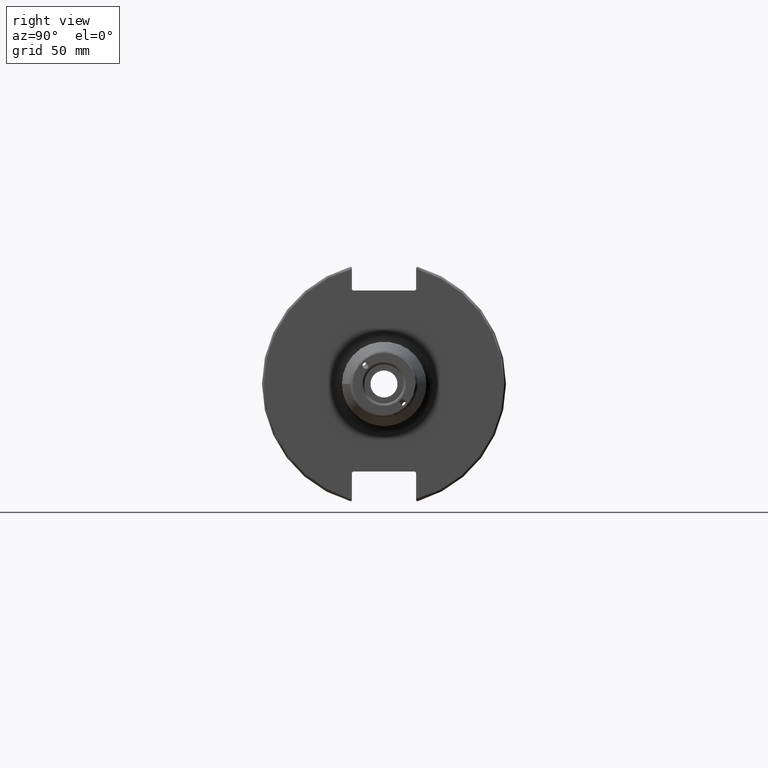
[diagram: clean part render]
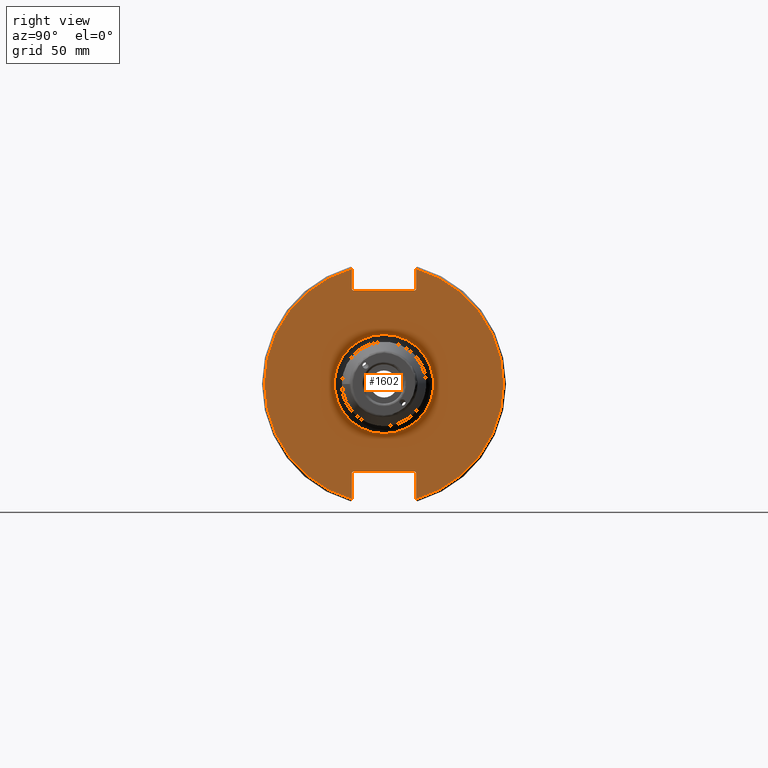
[diagram: same view with one face highlighted and labeled with its STEP entity id]
A machine part, right view. The second image highlights one B-rep face of the part: STEP entity #1602.
In plain terms, the highlighted planar face has unit normal (1, 0, 0).
Its self-contained STEP definition (entity closure, byte-faithful):
#36=PLANE('',#1743);
#87=FACE_BOUND('',#293,.T.);
#191=FACE_OUTER_BOUND('',#292,.T.);
#292=EDGE_LOOP('',(#1148,#1149,#1150,#1151,#1152,#1153,#1154,#1155,#1156,
#1157,#1158,#1159));
#293=EDGE_LOOP('',(#1160));
#394=LINE('',#2509,#494);
#395=LINE('',#2511,#495);
#396=LINE('',#2513,#496);
#397=LINE('',#2515,#497);
#398=LINE('',#2517,#498);
#399=LINE('',#2521,#499);
#400=LINE('',#2523,#500);
#401=LINE('',#2525,#501);
#402=LINE('',#2527,#502);
#403=LINE('',#2528,#503);
#494=VECTOR('',#1984,10.);
#495=VECTOR('',#1985,10.);
#496=VECTOR('',#1986,10.);
#497=VECTOR('',#1987,10.);
#498=VECTOR('',#1988,10.);
#499=VECTOR('',#1991,10.);
#500=VECTOR('',#1992,10.);
#501=VECTOR('',#1993,10.);
#502=VECTOR('',#1994,10.);
#503=VECTOR('',#1995,10.);
#601=CIRCLE('',#1739,20.);
#604=CIRCLE('',#1744,48.2125);
#605=CIRCLE('',#1745,48.2125);
#692=VERTEX_POINT('',#2496);
#694=VERTEX_POINT('',#2505);
#695=VERTEX_POINT('',#2506);
#696=VERTEX_POINT('',#2508);
#697=VERTEX_POINT('',#2510);
#698=VERTEX_POINT('',#2512);
#699=VERTEX_POINT('',#2514);
#700=VERTEX_POINT('',#2516);
#701=VERTEX_POINT('',#2518);
#702=VERTEX_POINT('',#2520);
#703=VERTEX_POINT('',#2522);
#704=VERTEX_POINT('',#2524);
#705=VERTEX_POINT('',#2526);
#866=EDGE_CURVE('',#692,#692,#601,.T.);
#870=EDGE_CURVE('',#694,#695,#604,.T.);
#871=EDGE_CURVE('',#694,#696,#394,.T.);
#872=EDGE_CURVE('',#697,#696,#395,.T.);
#873=EDGE_CURVE('',#697,#698,#396,.T.);
#874=EDGE_CURVE('',#699,#698,#397,.T.);
#875=EDGE_CURVE('',#699,#700,#398,.T.);
#876=EDGE_CURVE('',#701,#700,#605,.T.);
#877=EDGE_CURVE('',#701,#702,#399,.T.);
#878=EDGE_CURVE('',#703,#702,#400,.T.);
#879=EDGE_CURVE('',#703,#704,#401,.T.);
#880=EDGE_CURVE('',#705,#704,#402,.T.);
#881=EDGE_CURVE('',#705,#695,#403,.T.);
#1148=ORIENTED_EDGE('',*,*,#870,.F.);
#1149=ORIENTED_EDGE('',*,*,#871,.T.);
#1150=ORIENTED_EDGE('',*,*,#872,.F.);
#1151=ORIENTED_EDGE('',*,*,#873,.T.);
#1152=ORIENTED_EDGE('',*,*,#874,.F.);
#1153=ORIENTED_EDGE('',*,*,#875,.T.);
#1154=ORIENTED_EDGE('',*,*,#876,.F.);
#1155=ORIENTED_EDGE('',*,*,#877,.T.);
#1156=ORIENTED_EDGE('',*,*,#878,.F.);
#1157=ORIENTED_EDGE('',*,*,#879,.T.);
#1158=ORIENTED_EDGE('',*,*,#880,.F.);
#1159=ORIENTED_EDGE('',*,*,#881,.T.);
#1160=ORIENTED_EDGE('',*,*,#866,.F.);
#1602=ADVANCED_FACE('',(#191,#87),#36,.T.);
#1739=AXIS2_PLACEMENT_3D('',#2498,#1971,#1972);
#1743=AXIS2_PLACEMENT_3D('',#2504,#1980,#1981);
#1744=AXIS2_PLACEMENT_3D('',#2507,#1982,#1983);
#1745=AXIS2_PLACEMENT_3D('',#2519,#1989,#1990);
#1971=DIRECTION('center_axis',(1.,0.,0.));
#1972=DIRECTION('ref_axis',(0.,-1.,-1.22464679914735E-16));
#1980=DIRECTION('center_axis',(1.,0.,0.));
#1981=DIRECTION('ref_axis',(0.,0.,-1.));
#1982=DIRECTION('center_axis',(-1.,0.,0.));
#1983=DIRECTION('ref_axis',(0.,1.,-6.12323399573677E-17));
#1984=DIRECTION('',(0.,0.,-1.));
#1985=DIRECTION('',(0.,0.707106781186549,0.707106781186546));
#1986=DIRECTION('',(0.,-1.,0.));
#1987=DIRECTION('',(0.,0.707106781186549,-0.707106781186546));
#1988=DIRECTION('',(0.,0.,1.));
#1989=DIRECTION('center_axis',(-1.,0.,0.));
#1990=DIRECTION('ref_axis',(0.,-1.,1.60812264967664E-16));
#1991=DIRECTION('',(0.,0.,1.));
#1992=DIRECTION('',(0.,-0.707106781186549,-0.707106781186546));
#1993=DIRECTION('',(0.,1.,0.));
#1994=DIRECTION('',(0.,-0.707106781186548,0.707106781186548));
#1995=DIRECTION('',(0.,0.,-1.));
#2496=CARTESIAN_POINT('',(19.05,-2.44929359829471E-15,-20.));
#2498=CARTESIAN_POINT('Origin',(19.05,0.,0.));
#2504=CARTESIAN_POINT('Origin',(19.05,0.,0.));
#2505=CARTESIAN_POINT('',(19.05,12.95,46.4407434937254));
#2506=CARTESIAN_POINT('',(19.05,12.95,-46.4407434937254));
#2507=CARTESIAN_POINT('Origin',(19.05,0.,0.));
#2508=CARTESIAN_POINT('',(19.05,12.95,38.219));
#2509=CARTESIAN_POINT('',(19.05,12.95,18.8595));
#2510=CARTESIAN_POINT('',(19.05,12.45,37.719));
#2511=CARTESIAN_POINT('',(19.05,0.0327499999999836,25.30175));
#2512=CARTESIAN_POINT('',(19.05,-12.45,37.719));
#2513=CARTESIAN_POINT('',(19.05,0.,37.719));
#2514=CARTESIAN_POINT('',(19.05,-12.95,38.219));
#2515=CARTESIAN_POINT('',(19.05,-0.0327499999999817,25.30175));
#2516=CARTESIAN_POINT('',(19.05,-12.95,46.4407434937254));
#2517=CARTESIAN_POINT('',(19.05,-12.95,18.8595));
#2518=CARTESIAN_POINT('',(19.05,-12.95,-46.4407434937254));
#2519=CARTESIAN_POINT('Origin',(19.05,0.,0.));
#2520=CARTESIAN_POINT('',(19.05,-12.95,-35.806));
#2521=CARTESIAN_POINT('',(19.05,-12.95,-17.653));
#2522=CARTESIAN_POINT('',(19.05,-12.45,-35.306));
#2523=CARTESIAN_POINT('',(19.05,-0.635999999999989,-23.492));
#2524=CARTESIAN_POINT('',(19.05,12.45,-35.306));
#2525=CARTESIAN_POINT('',(19.05,-3.88578058618805E-15,-35.306));
#2526=CARTESIAN_POINT('',(19.05,12.95,-35.806));
#2527=CARTESIAN_POINT('',(19.05,0.635999999999995,-23.492));
#2528=CARTESIAN_POINT('',(19.05,12.95,-17.653));